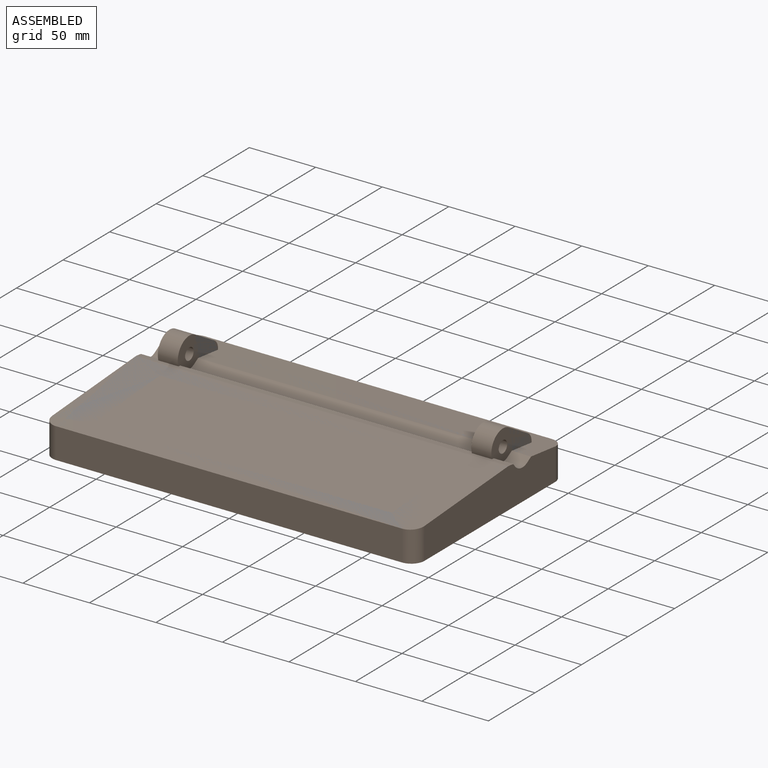
[diagram: assembled view]
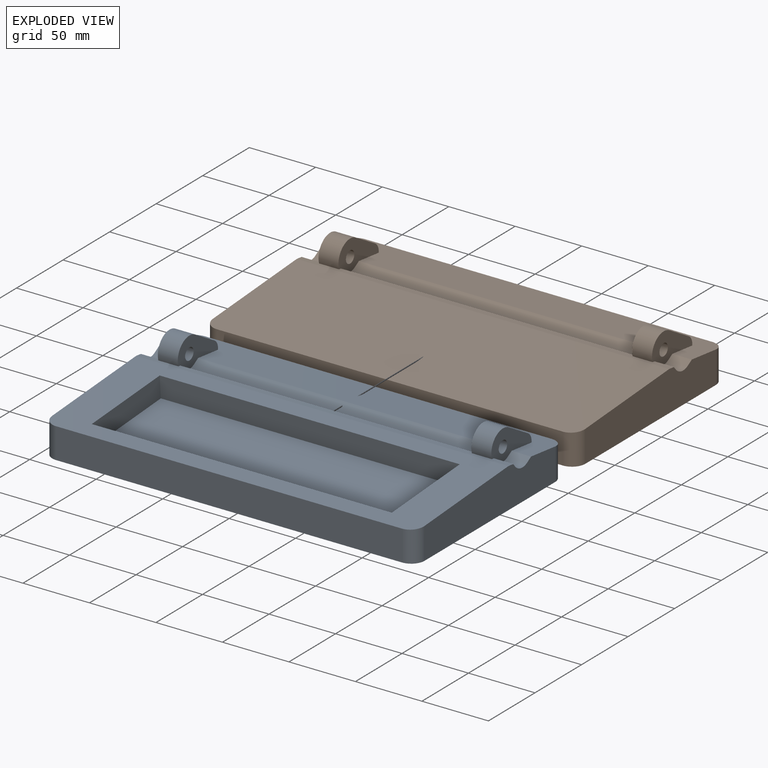
[diagram: exploded view]
GUIDED TOUR — FREECAD ASSEMBLY "BottomEnclosure_v2"

This assembly has 2 components, labeled P0..P1 below (a component is one placed body or linked part; the same part can appear more than once), held together by 0 modeled joints plus 1 derived contact edge. A joint is a constraint between two components; its type names the relative motion it leaves free:
  CONTACT — a derived adjacency edge — the two components touch in the source model (clearance under 2% of the assembly's diagonal); it is measured from the geometry, not a modeled constraint.
Axis/direction vectors are unit vectors and 'through' points are millimeter coordinates, both in the assembly's world frame.

MATES
  1. CONTACT "contact_0_1": P0 <-> P1, contact direction (0.000, 1.000, 0.000) through (-130.00, -100.00, 0.00) mm (derived from contact, not a modeled constraint)

ASSEMBLY ORDER
  1. P0 — the base component [order heuristic]
  2. P1 [order heuristic]
Order-tag legend:
  [order heuristic] — this assembly is geometrically interlocked (no collision-free removal order exists), so components are listed in mate-graph order; insertion feasibility is not verified.

Of the 2 components, 2 carry a construction recipe — the FreeCAD feature program (sketches with constraints, then the solid features that consume them) that regenerates the part from scratch, quoted from this document or from the linked companion document it references; the rest are supplied as boundary geometry only. The tour below walks the components in assembly order: each is shown spotlighted twice — in the assembled view, then in the exploded view, where a leader line traces a displaced component back to its assembled socket (components that stay in place when exploded have no leader line; saturated green if recipe-attached, orange if geometry-only; every other component desaturated gray) — followed by its recipe or geometry summary and the mates that hold it.
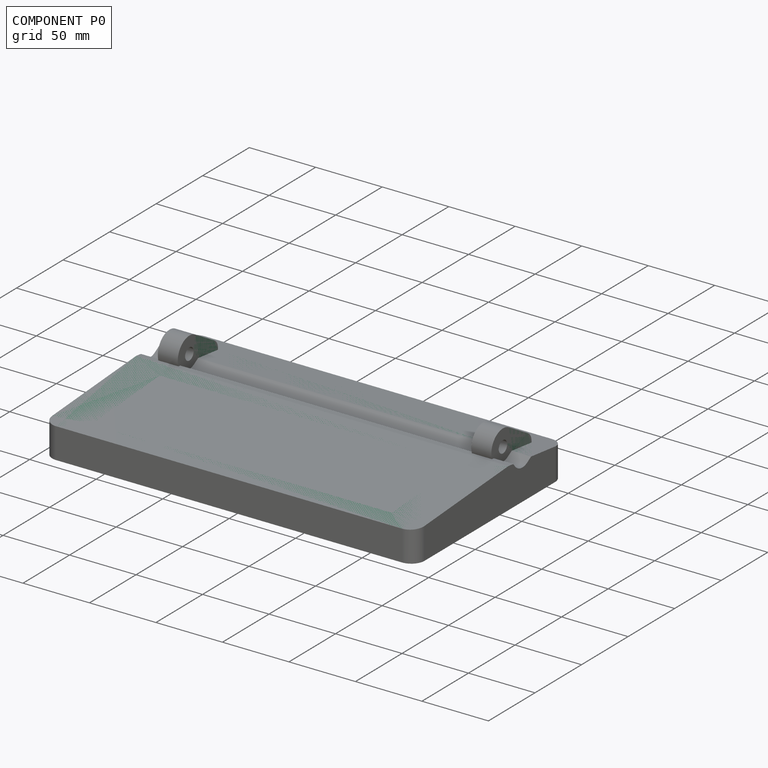
[diagram: component P0 — assembled]
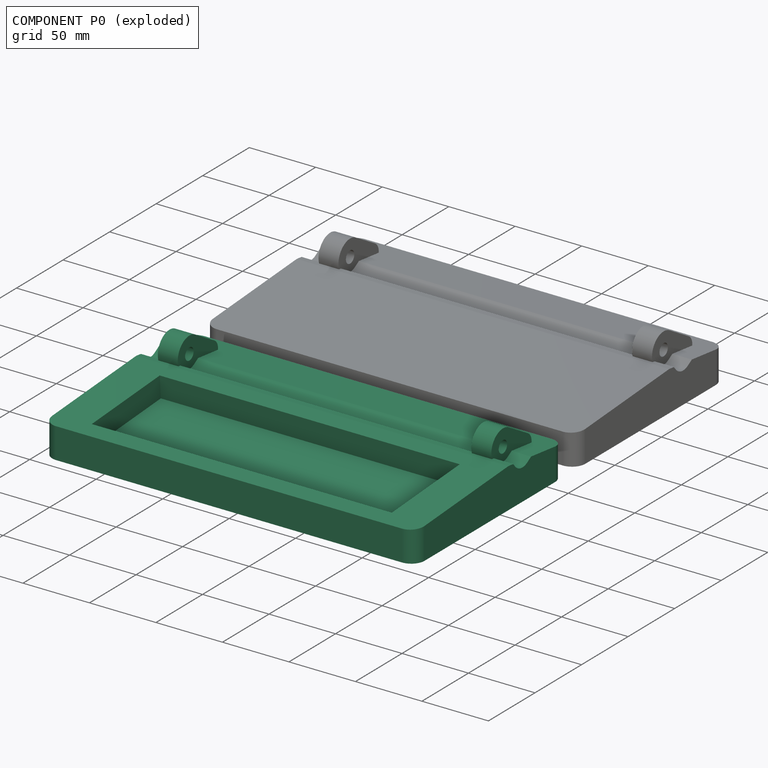
[diagram: component P0 — exploded]
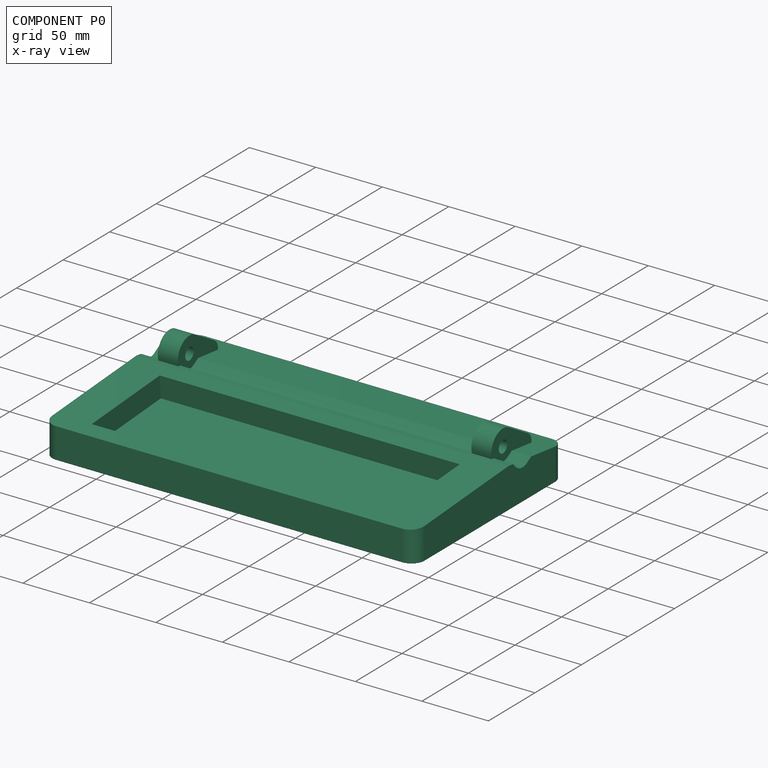
[diagram: component P0 — x-ray view]
COMPONENT P0 — recipe-attached ("Bottom Enclosure - 0", modeled in this document).
Held by: resting contact with P1 (derived edge).
Construction recipe (the document's own serialized feature program — sketch geometry with constraints, then the solid features built on it; lengths are millimeters unless a unit is written):

FEATURE [PartDesign::Boolean] Boolean
  Group = -> [Binder]
  Refine = true
  Suppressed = false
  Type = 0
  UsePlacement = true
FEATURE [PartDesign::SubShapeBinder] Binder011
  BindCopyOnChange = 0
  BindMode = 0
  ClaimChildren = false
  Context = -> Body [Binder011.]
  Fuse = false
  MakeFace = false
  OffsetFill = false
  OffsetIntersection = false
  OffsetJoinType = 0
  OffsetOpenResult = false
  PartialLoad = false
  Placement = pos=(-3.64e-14,-49.9267,26.5088) rot=(1,0,0;0.069813rad)
  Refine = true
  Relative = true
  Support = -> [Link001,Link002]
  _Version = 2
  expr: .Placement.Rotation.Angle = <<Vars>>.hood_angle
FEATURE [PartDesign::SubShapeBinder] Binder012
  BindCopyOnChange = 0
  BindMode = 0
  ClaimChildren = false
  Context = -> Body [Binder012.]
  Fuse = false
  MakeFace = true
  Offset = 2.5
  OffsetFill = false
  OffsetIntersection = false
  OffsetJoinType = 2
  OffsetOpenResult = false
  PartialLoad = false
  Refine = true
  Relative = true
  Support = -> [Binder011[Edge15,Edge18,Edge17,Edge16]]
  _Version = 2
  expr: Offset = <<Vars>>.wall
FEATURE [PartDesign::Pad] Pad
  BaseFeature = -> Boolean
  Direction = (0,-0.0697565,0.997564)
  Length = 10
  Length2 = 10
  Profile = -> Binder012
  Refine = true
  Suppressed = false
  Type = 3
  UpToFace = -> Boolean [Face2]
FEATURE [PartDesign::SubShapeBinder] Binder013
  BindCopyOnChange = 0
  BindMode = 0
  ClaimChildren = false
  Context = -> Body [Binder013.]
  Fuse = false
  MakeFace = true
  Offset = -1.5
  OffsetFill = false
  OffsetIntersection = false
  OffsetJoinType = 2
  OffsetOpenResult = false
  PartialLoad = false
  Refine = true
  Relative = true
  Support = -> [Binder011[Edge15,Edge18,Edge16,Edge17]]
  _Version = 2
FEATURE [PartDesign::Pocket] Pocket
  BaseFeature = -> Pad
  Direction = (0,0.0697565,-0.997564)
  Length = 16
  Length2 = 5
  Profile = -> Binder013
  Refine = true
  Suppressed = false
  Type = 0
FEATURE [PartDesign::Body] Body  label="Bottom Enclosure - 0"
  AllowCompound = false
  Group = -> [Boolean,Binder011,Binder012,Pad,Binder013,Pocket]
  Origin = -> Origin
  Tip = -> Pocket
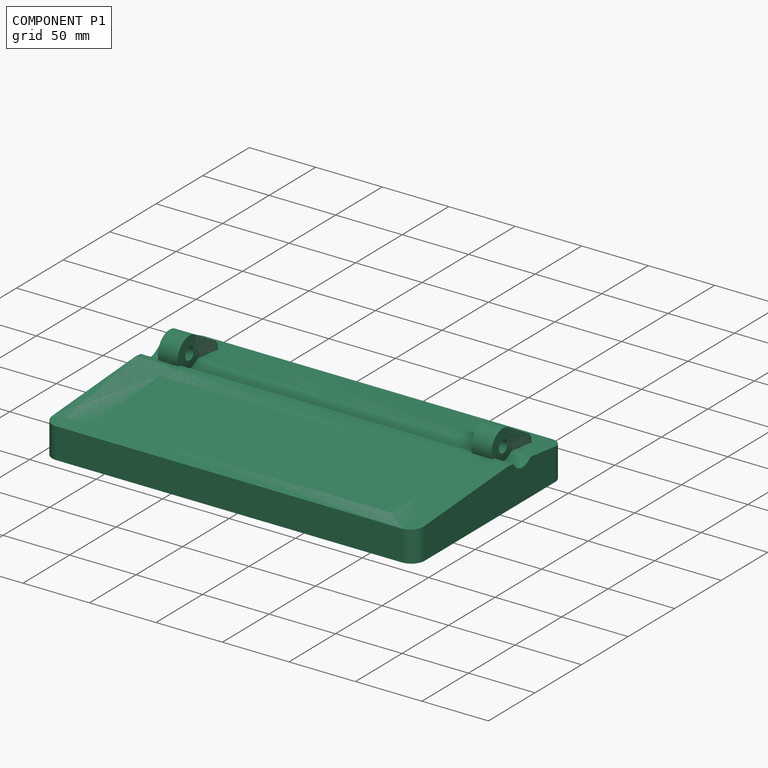
[diagram: component P1 — assembled]
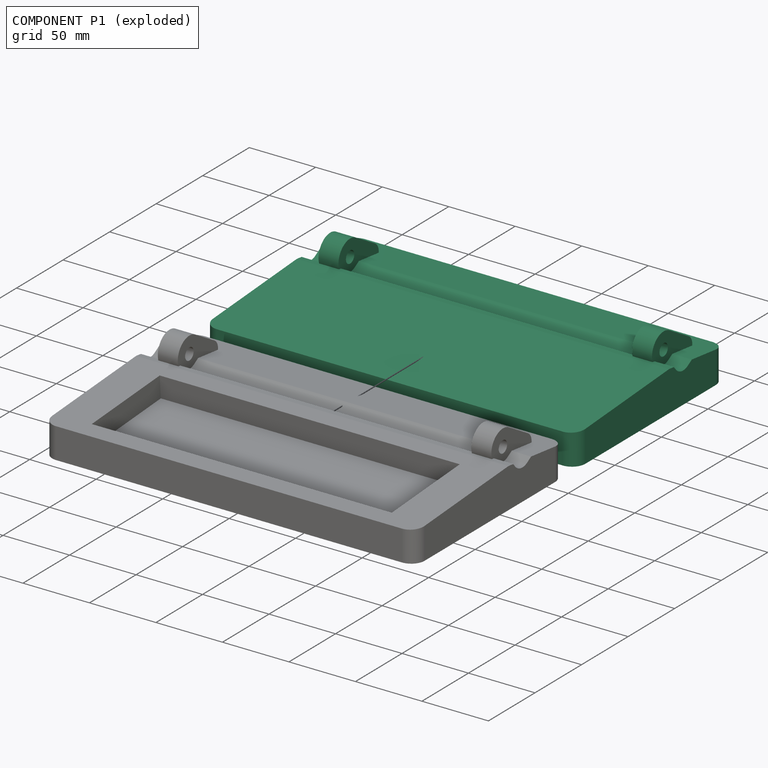
[diagram: component P1 — exploded]
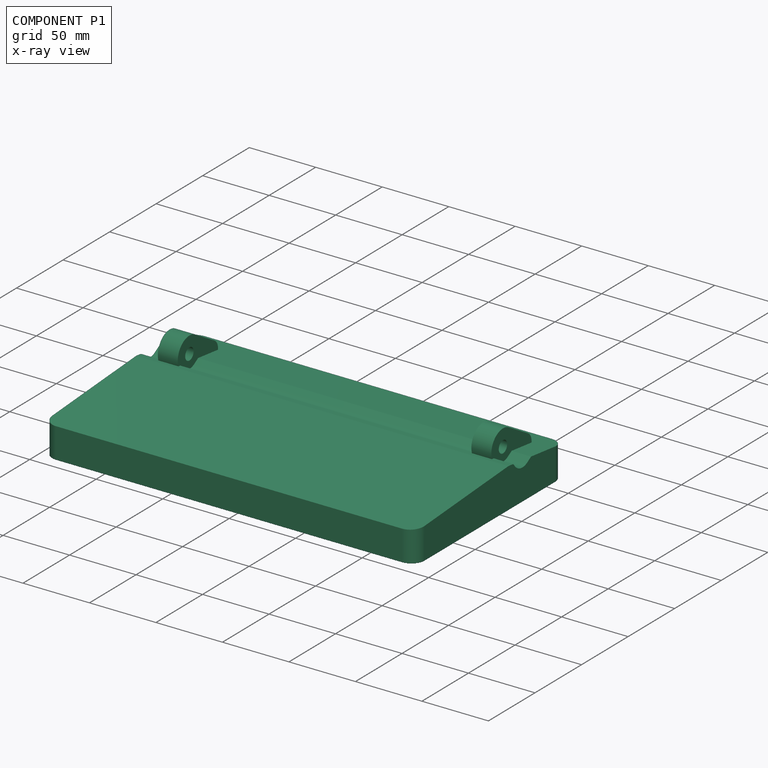
[diagram: component P1 — x-ray view]
COMPONENT P1 — recipe-attached ("Bottom Enclosure - Base", modeled in this document).
Held by: resting contact with P0 (derived edge).
Construction recipe (the document's own serialized feature program — sketch geometry with constraints, then the solid features built on it; lengths are millimeters unless a unit is written):

FEATURE [PartDesign::SubShapeBinder] Binder007
  BindCopyOnChange = 0
  BindMode = 0
  ClaimChildren = false
  Context = -> Body002 [Binder007.]
  Fuse = false
  MakeFace = true
  Offset = 0.2
  OffsetFill = false
  OffsetIntersection = false
  OffsetJoinType = 0
  OffsetOpenResult = false
  PartialLoad = false
  Refine = true
  Relative = true
  Support = -> [Sketch009[Edge3,Edge4,Edge5,Edge2]]
  _Version = 2
  expr: Offset = <<Vars>>.clearance
FEATURE [Sketcher::SketchObject] Sketch008
  ArcFitTolerance = 1e-06
  AttachmentSupport = -> [YZ_Plane002]
  FullyConstrained = true
  MakeInternals = false
  MapMode = 5
  Placement = pos=(0,0,0) rot=(0.57735,0.57735,0.57735;2.0944rad)
  expr: Constraints[10] = <<Vars>>.top_enclosure_height
  expr: Constraints[11] = <<Vars>>.bottom_enclosure_depth
  expr: Constraints[17] = <<Vars>>.hood_angle
  expr: Constraints[19] = <<Vars>>.bottom_enclosure_height
  sketch-geometry (7):
    g0: LineSegment StartX=-100 StartY=0 StartZ=0 EndX=-100 EndY=23.0073 EndZ=0
    g1: LineSegment StartX=-100 StartY=23.0073 StartZ=0 EndX=0 EndY=30 EndZ=0
    g2: LineSegment StartX=0 StartY=30 StartZ=0 EndX=60 EndY=23.0073 EndZ=0
    g3: LineSegment StartX=60 StartY=23.0073 StartZ=0 EndX=60 EndY=0 EndZ=0
    g4: LineSegment StartX=60 StartY=0 StartZ=0 EndX=-100 EndY=0 EndZ=0
    g5: LineSegment [constr] StartX=0 StartY=30 StartZ=0 EndX=-100 EndY=30 EndZ=0
    g6: LineSegment [constr] StartX=-100 StartY=30 StartZ=0 EndX=-100 EndY=23.0073 EndZ=0
  constraints (20):
    c: PointOnObject(g0,g-1)
    c: Vertical(g0)
    c: Coincident(g0,g1)
    c: PointOnObject(g1,g-2)
    c: Coincident(g1,g2)
    c: Coincident(g2,g3)
    c: PointOnObject(g3,g-1)
    c: Vertical(g3)
    c: Coincident(g3,g4)
    c: Coincident(g4,g0)
    c: DistanceX(g0,g-1) = 100
    c: DistanceY(g0,g1) = 30
    c: Coincident(g1,g5)
    c: Horizontal(g5)
    c: Coincident(g5,g6)
    c: Coincident(g6,g0)
    c: Vertical(g6)
    c: Angle(g5,g1) = 0.0698132
    c: Horizontal(g2,g0)
    c: DistanceX(g0,g3) = 160
FEATURE [PartDesign::Pad] Pad003
  Direction = (1,0,0)
  Length = 280
  Length2 = 10
  Midplane = true
  Placement = pos=(0,0,0) rot=(1,1,1;2.0944rad)
  Profile = -> Sketch008
  ReferenceAxis = -> Sketch008 [N_Axis]
  Refine = true
  Suppressed = false
  Type = 0
  expr: Length = <<Vars>>.top_enclosure_width
FEATURE [PartDesign::Fillet] Fillet001
  Base = -> Pad003 [Edge4,Edge3,Edge13,Edge12]
  BaseFeature = -> Pad003
  Placement = pos=(0,0,0) rot=(1,1,1;2.0944rad)
  Radius = 10
  Refine = true
  SupportTransform = false
  Suppressed = false
  UseAllEdges = false
  expr: Radius = <<Vars>>.ext_radius
FEATURE [PartDesign::Pocket] Pocket002
  BaseFeature = -> Fillet001
  Direction = (-1,0,0)
  Length = 5
  Length2 = 5
  Midplane = true
  Placement = pos=(0,0,0) rot=(1,1,1;2.0944rad)
  Profile = -> Binder007
  Refine = true
  Suppressed = false
  Type = 1
FEATURE [Sketcher::SketchObject] Sketch009
  ArcFitTolerance = 1e-06
  AttachmentSupport = -> [YZ_Plane002]
  FullyConstrained = true
  MakeInternals = false
  MapMode = 5
  Placement = pos=(0,0,0) rot=(0.57735,0.57735,0.57735;2.0944rad)
  expr: Constraints[1] = <<Vars>>.bottom_enclosure_depth + 2.5 + 1
  sketch-geometry (2):
    g0: Circle CenterX=15 CenterY=33.5 CenterZ=0 NormalX=0 NormalY=0 NormalZ=1 AngleXU=0 Radius=4.5
    g1: Circle CenterX=15 CenterY=33.5 CenterZ=0 NormalX=0 NormalY=0 NormalZ=1 AngleXU=0 Radius=10
  constraints (5):
    c: DistanceX(g-1,g0) = 15
    c: DistanceY(g-1,g0) = 33.5
    c: Diameter(g0) = 9
    c: Diameter(g1) = 20
    c: Coincident(g1,g0)
FEATURE [Sketcher::SketchObject] Sketch010
  ArcFitTolerance = 1e-06
  AttachmentSupport = -> [YZ_Plane002]
  ExternalGeometry = -> [Sketch009]
  FullyConstrained = true
  MakeInternals = false
  MapMode = 5
  Placement = pos=(0,0,0) rot=(0.57735,0.57735,0.57735;2.0944rad)
  expr: Constraints[3] = 26 / 2
  sketch-geometry (5):
    g0: LineSegment StartX=15 StartY=33.5 StartZ=0 EndX=2 EndY=33.5 EndZ=0
    g1: LineSegment StartX=15 StartY=33.5 StartZ=0 EndX=27.216 EndY=29.0537 EndZ=0
    g2: ArcOfCircle CenterX=15 CenterY=33.5 CenterZ=0 NormalX=0 NormalY=0 NormalZ=1 AngleXU=0 Radius=10 StartAngle=3.83475 EndAngle=5.24096
    g3: LineSegment StartX=2 StartY=33.5 StartZ=0 EndX=7.30769 EndY=27.1103 EndZ=0
    g4: LineSegment StartX=20.043 StartY=24.8647 StartZ=0 EndX=27.216 EndY=29.0537 EndZ=0
  constraints (12):
    c: Horizontal(g0)
    c: Coincident(g1,g0)
    c: Coincident(g0,g-3)
    c: DistanceX(g0,g0) = 13
    c: Equal(g1,g0)
    c: Angle(g0,g1) = 2.79253
    c: Coincident(g2,g0)
    c: PointOnObject(g2,g-3)
    c: Coincident(g3,g0)
    c: Coincident(g4,g1)
    c: Tangent(g4,g2) = -1.5708
    c: Tangent(g3,g2) = -1.5708
FEATURE [PartDesign::Thickness] Thickness001
  Base = -> Pocket002 [Face2]
  BaseFeature = -> Pocket002
  Intersection = true
  Join = 1
  Mode = 0
  Refine = true
  Reversed = true
  SupportTransform = false
  Suppressed = false
  Value = 2.5
  expr: Value = <<Vars>>.wall
FEATURE [PartDesign::SubShapeBinder] Binder008
  BindCopyOnChange = 0
  BindMode = 0
  ClaimChildren = false
  Context = -> Body002 [Binder008.]
  Fuse = false
  MakeFace = true
  Offset = 0.2
  OffsetFill = false
  OffsetIntersection = false
  OffsetJoinType = 2
  OffsetOpenResult = false
  PartialLoad = false
  Refine = true
  Relative = true
  Support = -> [Sketch010]
  _Version = 2
  expr: Offset = <<Vars>>.clearance
FEATURE [PartDesign::Pocket] Pocket003
  BaseFeature = -> Thickness001
  Direction = (-1,0,0)
  Length = 5
  Length2 = 5
  Midplane = true
  Profile = -> Binder008
  Refine = true
  Suppressed = false
  Type = 1
FEATURE [Sketcher::SketchObject] Sketch011
  ArcFitTolerance = 1e-06
  AttachmentSupport = -> [YZ_Plane002]
  ExternalGeometry = -> [Pocket003,Sketch009]
  FullyConstrained = true
  MakeInternals = false
  MapMode = 5
  Placement = pos=(0,0,0) rot=(0.57735,0.57735,0.57735;2.0944rad)
  sketch-geometry (5):
    g0: ArcOfCircle CenterX=15 CenterY=33.5 CenterZ=0 NormalX=0 NormalY=0 NormalZ=1 AngleXU=0 Radius=12.5 StartAngle=1.0472 EndAngle=5.73699
    g1: LineSegment StartX=21.25 StartY=44.3253 StartZ=0 EndX=41.7579 EndY=32.4851 EndZ=0
    g2: ArcOfCircle CenterX=37.7809 CenterY=25.5968 CenterZ=0 NormalX=0 NormalY=0 NormalZ=1 AngleXU=0 Radius=7.95389 StartAngle=6.16716 EndAngle=7.33038
    g3: LineSegment [constr] StartX=45.6813 StartY=24.6761 StartZ=0 EndX=30.6813 EndY=24.6761 EndZ=0
    g4: LineSegment StartX=25.6813 StartY=27.007 StartZ=0 EndX=45.6813 EndY=24.6761 EndZ=0
  constraints (14):
    c: Diameter(g0) = 25
    c: Coincident(g0,g-4)
    c: PointOnObject(g0,g-5)
    c: PointOnObject(g2,g-5)
    c: Tangent(g1,g0) = 1.5708
    c: Tangent(g2,g1) = 1.5708
    c: Perpendicular(g2,g-5)
    c: Horizontal(g3)
    c: Angle(g1,g3) = 0.523599
    c: DistanceX(g3,g3) = 15
    c: Coincident(g4,g0)
    c: Coincident(g4,g2)
    c: Coincident(g2,g3)
    c: DistanceX(g0,g2) = 20
FEATURE [PartDesign::SubShapeBinder] Binder009
  BindCopyOnChange = 0
  BindMode = 0
  ClaimChildren = false
  Context = -> Body002 [Binder009.]
  Fuse = false
  MakeFace = true
  OffsetFill = false
  OffsetIntersection = false
  OffsetJoinType = 0
  OffsetOpenResult = false
  PartialLoad = false
  Placement = pos=(110.4,0,0) rot=(0,0,1;0rad)
  Refine = true
  Relative = true
  Support = -> [Sketch011]
  _Version = 2
  expr: .Placement.Base.x = (<<Vars>>.top_enclosure_width - 32 * 2) / 2 + 2.4
FEATURE [PartDesign::Pad] Pad004
  BaseFeature = -> Pocket003
  Direction = (1,0,0)
  Length = 15
  Length2 = 10
  Profile = -> Binder009
  Refine = true
  Suppressed = false
  Type = 0
FEATURE [PartDesign::SubShapeBinder] Binder010
  BindCopyOnChange = 0
  BindMode = 0
  ClaimChildren = false
  Context = -> Body002 [Binder010.]
  Fuse = false
  MakeFace = true
  OffsetFill = false
  OffsetIntersection = false
  OffsetJoinType = 0
  OffsetOpenResult = false
  PartialLoad = false
  Refine = true
  Relative = true
  Support = -> [Sketch009[Edge1]]
  _Version = 2
FEATURE [PartDesign::Pocket] Pocket004
  BaseFeature = -> Pad004
  Direction = (-1,0,0)
  Length = 5
  Length2 = 5
  Midplane = true
  Profile = -> Binder010
  Refine = true
  Suppressed = false
  Type = 1
FEATURE [PartDesign::Mirrored] Mirrored001
  BaseFeature = -> Pocket004
  MirrorPlane = -> YZ_Plane002
  Originals = -> [Pad004,Pocket004]
  Refine = true
  Suppressed = false
  TransformMode = 0
FEATURE [PartDesign::Body] Body002  label="Bottom Enclosure - Base"
  AllowCompound = false
  Group = -> [Sketch008,Pad003,Fillet001,Sketch009,Binder007,Pocket002,Sketch010,Thickness001,Binder008,Pocket003,Sketch011,Binder009,Pad004,Binder010,Pocket004,Mirrored001]
  Origin = -> Origin002
  Tip = -> Mirrored001
PROVENANCE & LICENSES
Assembly and component geometry: a FreeCAD (.FCStd) document from a public repository crawl; components, placements and joints were extracted with FreeCAD and each solid tessellated.
Construction recipes: the document's own serialized feature recipes (and, for linked parts, the recipes of companion documents from the same project).
License: as declared in the source repository (recorded in the dataset sidecar).
Joints: native FreeCAD joints and A2plus constraints are mapped to standard mate types; edges marked 'derived from contact' connect touching components and are measured from the geometry, not modeled.
Verification: 2 of this assembly's 2 components carry a construction recipe (2 from this document itself); the rest are geometry-only. Every component's tessellation passed the extraction mesh gates (mesh-volume checksum against the B-rep where available, bounding-box inflation <= 2%).
Renders: orthographic iso camera (az 35 / el 25); the floor grid conveys scale (grid pitch printed in each image; no ruler). In the exploded view each component is displaced by its stored offset vector: the offsets alone carry the explosion direction (mate normal/axis signs are not orientation cues and do not encode it), and separation distances are assigned per mate-chain, not proportionally to assembly-order depth.
